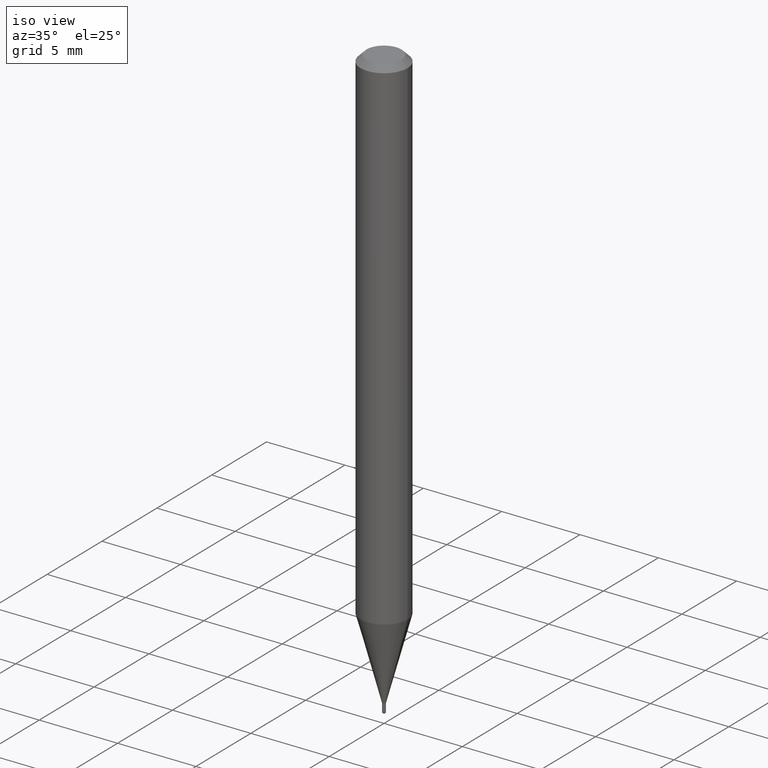
[diagram: clean part render]
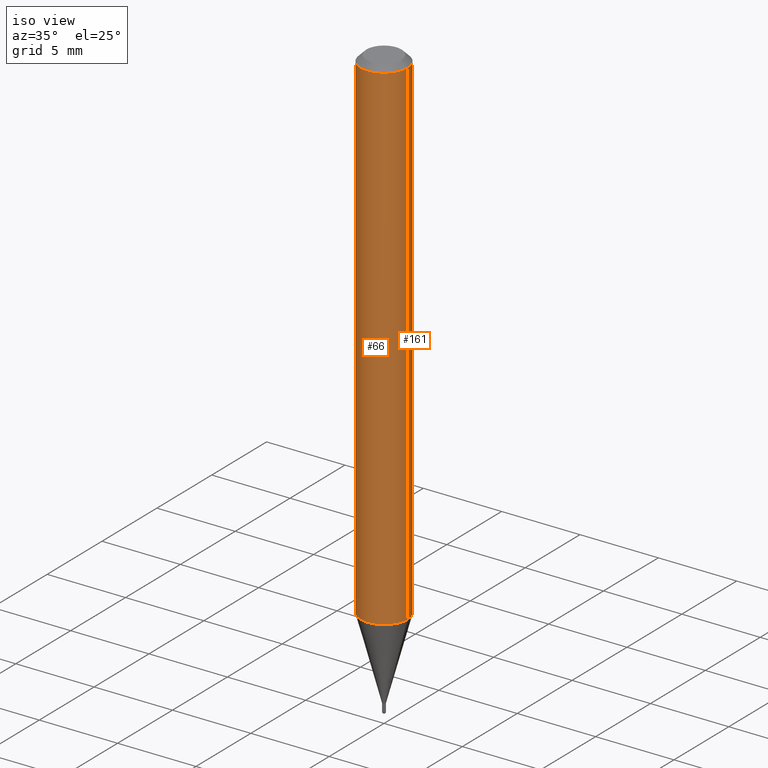
[diagram: same view with one multi-face feature highlighted, each face labeled with its STEP entity id]
A machine part, iso view. The highlighted faces form ONE feature: a constant-radius fillet chain: 2 tangent blend faces with common blend radius 1.4999 mm. The faces share edges in the B-rep.
Their STEP definitions:
[1] entity #161 (Cylinder):
#3 = VECTOR ( 'NONE', #498, 39.37007874015748143 ) ;
#6 = DIRECTION ( 'NONE',  ( -2.445468806185136877E-29, 3.491481338843145188E-15, 1.000000000000000000 ) ) ;
#23 = DIRECTION ( 'NONE',  ( 1.000000000000000000, -6.982962677686266711E-15, 0.000000000000000000 ) ) ;
#63 = CARTESIAN_POINT ( 'NONE',  ( 3.098076394908902159E-29, -4.423232016608262091E-15, -1.266864000502960996 ) ) ;
#89 = VERTEX_POINT ( 'NONE', #457 ) ;
#90 = CARTESIAN_POINT ( 'NONE',  ( 0.000000000000000000, 0.000000000000000000, 0.000000000000000000 ) ) ;
#116 = CARTESIAN_POINT ( 'NONE',  ( 0.05904999999999999832, -4.647161662000215063E-16, -0.01500000000000008098 ) ) ;
#120 = AXIS2_PLACEMENT_3D ( 'NONE', #90, #251, #408 ) ;
#161 = ADVANCED_FACE ( 'NONE', ( #363 ), #299, .T. ) ;
#179 = ORIENTED_EDGE ( 'NONE', *, *, #248, .F. ) ;
#196 = VECTOR ( 'NONE', #6, 39.37007874015748143 ) ;
#200 = EDGE_CURVE ( 'NONE', #283, #89, #205, .T. ) ;
#205 = LINE ( 'NONE', #479, #196 ) ;
#226 = VERTEX_POINT ( 'NONE', #263 ) ;
#245 = AXIS2_PLACEMENT_3D ( 'NONE', #435, #455, #23 ) ;
#246 = AXIS2_PLACEMENT_3D ( 'NONE', #63, #268, #312 ) ;
#248 = EDGE_CURVE ( 'NONE', #461, #89, #487, .T. ) ;
#251 = DIRECTION ( 'NONE',  ( -2.445468806185136597E-29, 3.491481338843145583E-15, 1.000000000000000000 ) ) ;
#261 = CARTESIAN_POINT ( 'NONE',  ( -0.05904999999999999832, -4.003656531141921809E-15, -1.266864000502960996 ) ) ;
#263 = CARTESIAN_POINT ( 'NONE',  ( 0.05904999999999999832, -4.835575962725635433E-15, -1.266864000502960996 ) ) ;
#268 = DIRECTION ( 'NONE',  ( -2.445468806185136597E-29, 3.491481338843145583E-15, 1.000000000000000000 ) ) ;
#279 = ORIENTED_EDGE ( 'NONE', *, *, #200, .T. ) ;
#283 = VERTEX_POINT ( 'NONE', #261 ) ;
#299 = CYLINDRICAL_SURFACE ( 'NONE', #120, 0.05904999999999999832 ) ;
#303 = CARTESIAN_POINT ( 'NONE',  ( 0.05904999999999999832, -4.123439461173740327E-16, 2.879382386107500220E-30 ) ) ;
#305 = EDGE_CURVE ( 'NONE', #226, #283, #374, .T. ) ;
#312 = DIRECTION ( 'NONE',  ( 1.000000000000000000, -6.982962677686273021E-15, 0.000000000000000000 ) ) ;
#334 = EDGE_CURVE ( 'NONE', #226, #461, #349, .T. ) ;
#341 = EDGE_LOOP ( 'NONE', ( #497, #279, #179, #399 ) ) ;
#349 = LINE ( 'NONE', #303, #3 ) ;
#363 = FACE_OUTER_BOUND ( 'NONE', #341, .T. ) ;
#374 = CIRCLE ( 'NONE', #246, 0.05904999999999999832 ) ;
#399 = ORIENTED_EDGE ( 'NONE', *, *, #334, .F. ) ;
#408 = DIRECTION ( 'NONE',  ( 1.000000000000000000, -6.982962677686266711E-15, 4.876176775795936353E-29 ) ) ;
#435 = CARTESIAN_POINT ( 'NONE',  ( 3.668203209277724356E-31, -5.237222008264746748E-17, -0.01500000000000008098 ) ) ;
#455 = DIRECTION ( 'NONE',  ( -2.445468806185136597E-29, 3.491481338843145583E-15, 1.000000000000000000 ) ) ;
#457 = CARTESIAN_POINT ( 'NONE',  ( -0.05904999999999999832, -1.818226632879115684E-15, -0.01500000000000008098 ) ) ;
#461 = VERTEX_POINT ( 'NONE', #116 ) ;
#479 = CARTESIAN_POINT ( 'NONE',  ( -0.05904999999999999832, 4.195754854663391478E-16, -2.904631170795521892E-30 ) ) ;
#487 = CIRCLE ( 'NONE', #245, 0.05904999999999999832 ) ;
#497 = ORIENTED_EDGE ( 'NONE', *, *, #305, .T. ) ;
#498 = DIRECTION ( 'NONE',  ( -2.445468806185136877E-29, 3.491481338843145188E-15, 1.000000000000000000 ) ) ;
[2] entity #66 (Cylinder):
#3 = VECTOR ( 'NONE', #498, 39.37007874015748143 ) ;
#6 = DIRECTION ( 'NONE',  ( -2.445468806185136877E-29, 3.491481338843145188E-15, 1.000000000000000000 ) ) ;
#66 = ADVANCED_FACE ( 'NONE', ( #351 ), #224, .T. ) ;
#68 = EDGE_LOOP ( 'NONE', ( #450, #192, #219, #436 ) ) ;
#69 = CARTESIAN_POINT ( 'NONE',  ( 3.098076394908902159E-29, -4.423232016608262091E-15, -1.266864000502960996 ) ) ;
#80 = EDGE_CURVE ( 'NONE', #89, #461, #113, .T. ) ;
#88 = DIRECTION ( 'NONE',  ( -2.445468806185136597E-29, 3.491481338843145583E-15, 1.000000000000000000 ) ) ;
#89 = VERTEX_POINT ( 'NONE', #457 ) ;
#100 = CARTESIAN_POINT ( 'NONE',  ( 0.000000000000000000, 0.000000000000000000, 0.000000000000000000 ) ) ;
#103 = CIRCLE ( 'NONE', #155, 0.05904999999999999832 ) ;
#113 = CIRCLE ( 'NONE', #447, 0.05904999999999999832 ) ;
#116 = CARTESIAN_POINT ( 'NONE',  ( 0.05904999999999999832, -4.647161662000215063E-16, -0.01500000000000008098 ) ) ;
#155 = AXIS2_PLACEMENT_3D ( 'NONE', #69, #352, #187 ) ;
#187 = DIRECTION ( 'NONE',  ( 1.000000000000000000, -6.982962677686273021E-15, 0.000000000000000000 ) ) ;
#192 = ORIENTED_EDGE ( 'NONE', *, *, #402, .T. ) ;
#196 = VECTOR ( 'NONE', #6, 39.37007874015748143 ) ;
#200 = EDGE_CURVE ( 'NONE', #283, #89, #205, .T. ) ;
#205 = LINE ( 'NONE', #479, #196 ) ;
#208 = DIRECTION ( 'NONE',  ( -2.445468806185136597E-29, 3.491481338843145583E-15, 1.000000000000000000 ) ) ;
#219 = ORIENTED_EDGE ( 'NONE', *, *, #334, .T. ) ;
#224 = CYLINDRICAL_SURFACE ( 'NONE', #392, 0.05904999999999999832 ) ;
#226 = VERTEX_POINT ( 'NONE', #263 ) ;
#244 = CARTESIAN_POINT ( 'NONE',  ( 3.668203209277724356E-31, -5.237222008264746748E-17, -0.01500000000000008098 ) ) ;
#261 = CARTESIAN_POINT ( 'NONE',  ( -0.05904999999999999832, -4.003656531141921809E-15, -1.266864000502960996 ) ) ;
#263 = CARTESIAN_POINT ( 'NONE',  ( 0.05904999999999999832, -4.835575962725635433E-15, -1.266864000502960996 ) ) ;
#283 = VERTEX_POINT ( 'NONE', #261 ) ;
#303 = CARTESIAN_POINT ( 'NONE',  ( 0.05904999999999999832, -4.123439461173740327E-16, 2.879382386107500220E-30 ) ) ;
#334 = EDGE_CURVE ( 'NONE', #226, #461, #349, .T. ) ;
#349 = LINE ( 'NONE', #303, #3 ) ;
#351 = FACE_OUTER_BOUND ( 'NONE', #68, .T. ) ;
#352 = DIRECTION ( 'NONE',  ( -2.445468806185136597E-29, 3.491481338843145583E-15, 1.000000000000000000 ) ) ;
#389 = DIRECTION ( 'NONE',  ( 1.000000000000000000, -6.982962677686266711E-15, 4.876176775795936353E-29 ) ) ;
#392 = AXIS2_PLACEMENT_3D ( 'NONE', #100, #208, #389 ) ;
#402 = EDGE_CURVE ( 'NONE', #283, #226, #103, .T. ) ;
#415 = DIRECTION ( 'NONE',  ( 1.000000000000000000, -6.982962677686266711E-15, 0.000000000000000000 ) ) ;
#436 = ORIENTED_EDGE ( 'NONE', *, *, #80, .F. ) ;
#447 = AXIS2_PLACEMENT_3D ( 'NONE', #244, #88, #415 ) ;
#450 = ORIENTED_EDGE ( 'NONE', *, *, #200, .F. ) ;
#457 = CARTESIAN_POINT ( 'NONE',  ( -0.05904999999999999832, -1.818226632879115684E-15, -0.01500000000000008098 ) ) ;
#461 = VERTEX_POINT ( 'NONE', #116 ) ;
#479 = CARTESIAN_POINT ( 'NONE',  ( -0.05904999999999999832, 4.195754854663391478E-16, -2.904631170795521892E-30 ) ) ;
#498 = DIRECTION ( 'NONE',  ( -2.445468806185136877E-29, 3.491481338843145188E-15, 1.000000000000000000 ) ) ;